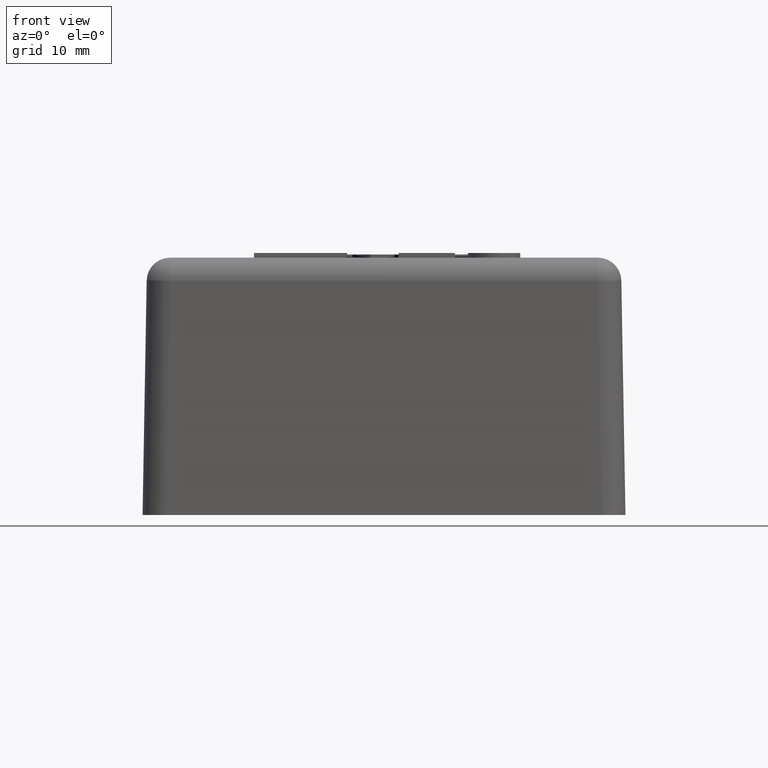
[diagram: clean part render]
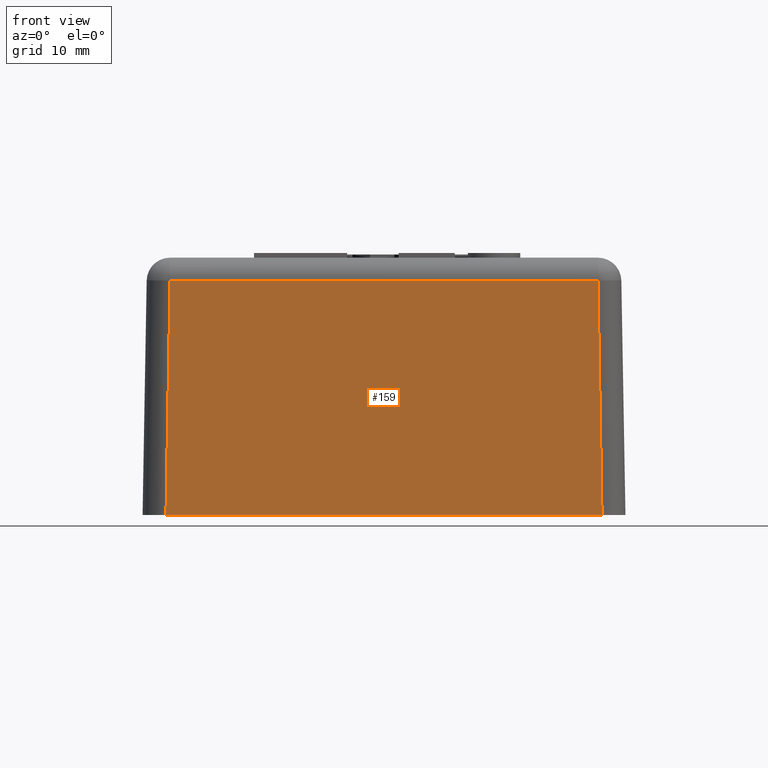
[diagram: same view with one face highlighted and labeled with its STEP entity id]
A machine part, front view. The second image highlights one B-rep face of the part: STEP entity #159.
In plain terms, the highlighted planar face has unit normal (0, -0.9998, 0.0175).
Its self-contained STEP definition (entity closure, byte-faithful):
#159 = ADVANCED_FACE( '', ( #348 ), #349, .T. );
#348 = FACE_OUTER_BOUND( '', #547, .T. );
#349 = PLANE( '', #548 );
#547 = EDGE_LOOP( '', ( #1244, #1245, #1246, #1247 ) );
#548 = AXIS2_PLACEMENT_3D( '', #1248, #1249, #1250 );
#1244 = ORIENTED_EDGE( '', *, *, #1517, .T. );
#1245 = ORIENTED_EDGE( '', *, *, #1512, .T. );
#1246 = ORIENTED_EDGE( '', *, *, #1514, .T. );
#1247 = ORIENTED_EDGE( '', *, *, #1538, .T. );
#1248 = CARTESIAN_POINT( '', ( -25.8000000000000, -25.8000000000000, 0.000000000000000 ) );
#1249 = DIRECTION( '', ( 0.000000000000000, -0.999847695156391, 0.0174524064372835 ) );
#1250 = DIRECTION( '', ( 0.000000000000000, -0.0174524064372835, -0.999847695156391 ) );
#1512 = EDGE_CURVE( '', #1862, #1866, #1868, .F. );
#1514 = EDGE_CURVE( '', #1866, #1870, #1871, .F. );
#1517 = EDGE_CURVE( '', #1875, #1862, #1876, .T. );
#1538 = EDGE_CURVE( '', #1870, #1875, #1908, .F. );
#1862 = VERTEX_POINT( '', #2498 );
#1866 = VERTEX_POINT( '', #2502 );
#1868 = LINE( '', #2504, #2505 );
#1870 = VERTEX_POINT( '', #2507 );
#1871 = LINE( '', #2508, #2509 );
#1875 = VERTEX_POINT( '', #2514 );
#1876 = LINE( '', #2515, #2516 );
#1908 = LINE( '', #2565, #2566 );
#2498 = CARTESIAN_POINT( '', ( 22.8632425566848, -25.3628617945758, 25.0436310160932 ) );
#2502 = CARTESIAN_POINT( '', ( -22.8632425566848, -25.3628617945758, 25.0436310160932 ) );
#2504 = CARTESIAN_POINT( '', ( -22.8203664765830, -25.3628617945758, 25.0436310160932 ) );
#2505 = VECTOR( '', #2777, 1000.00000000000 );
#2507 = CARTESIAN_POINT( '', ( -23.3003807621090, -25.8000000000000, 0.000000000000000 ) );
#2508 = CARTESIAN_POINT( '', ( -23.3011418805338, -25.8007611184247, -0.0436044453501647 ) );
#2509 = VECTOR( '', #2781, 1000.00000000000 );
#2514 = CARTESIAN_POINT( '', ( 23.3003807621090, -25.8000000000000, 0.000000000000000 ) );
#2515 = CARTESIAN_POINT( '', ( 23.2854300032520, -25.7850492411430, 0.856528401269667 ) );
#2516 = VECTOR( '', #2786, 1000.00000000000 );
#2565 = CARTESIAN_POINT( '', ( -25.8000000000000, -25.8000000000000, 0.000000000000000 ) );
#2566 = VECTOR( '', #2813, 1000.00000000000 );
#2777 = DIRECTION( '', ( 1.00000000000000, 0.000000000000000, 0.000000000000000 ) );
#2781 = DIRECTION( '', ( 0.0174497491606827, 0.0174497491606827, 0.999695459881887 ) );
#2786 = DIRECTION( '', ( -0.0174497491606827, 0.0174497491606827, 0.999695459881887 ) );
#2813 = DIRECTION( '', ( -1.00000000000000, 0.000000000000000, 0.000000000000000 ) );